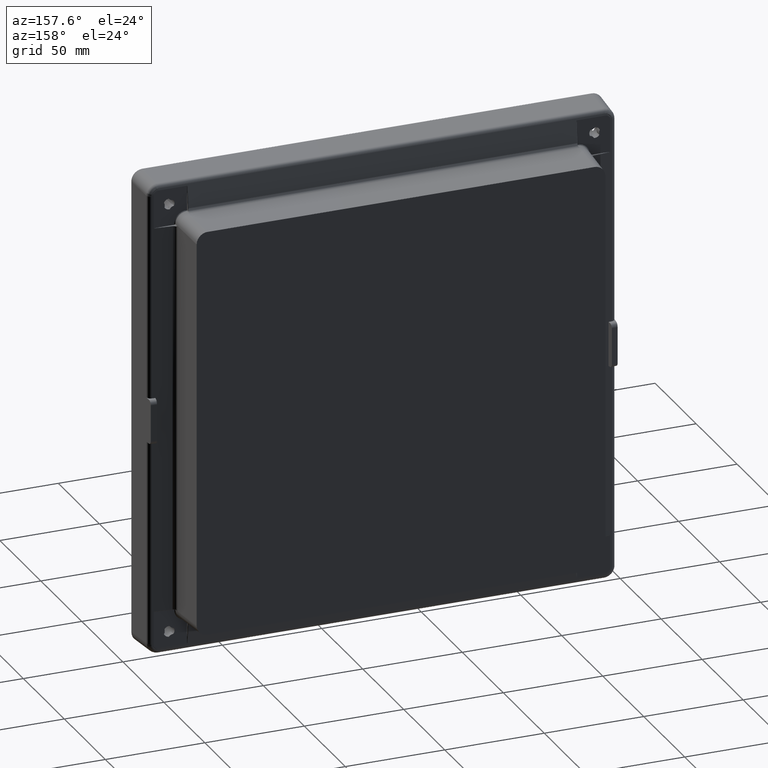
[diagram: clean part render]
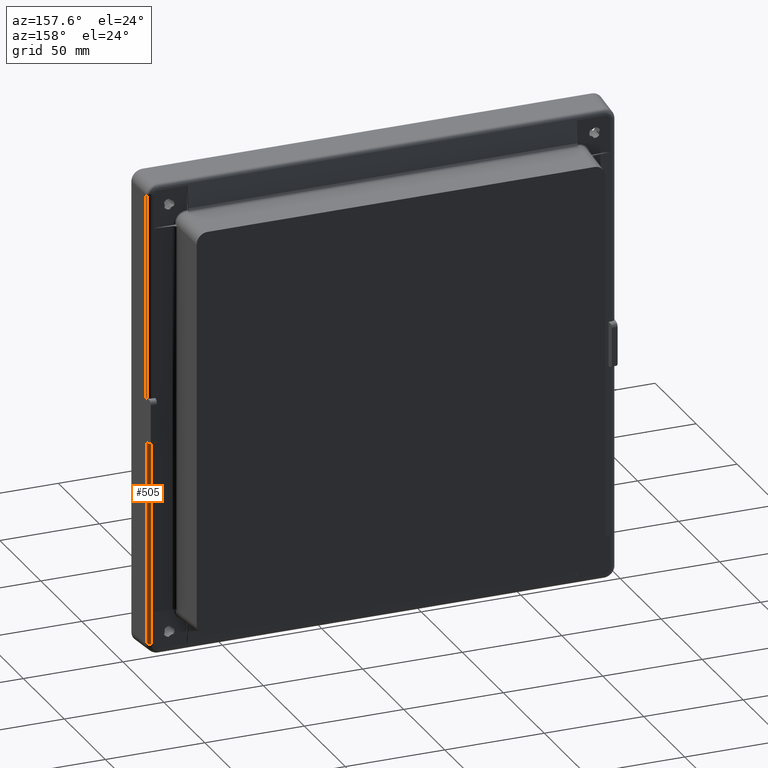
[diagram: same view with one face highlighted and labeled with its STEP entity id]
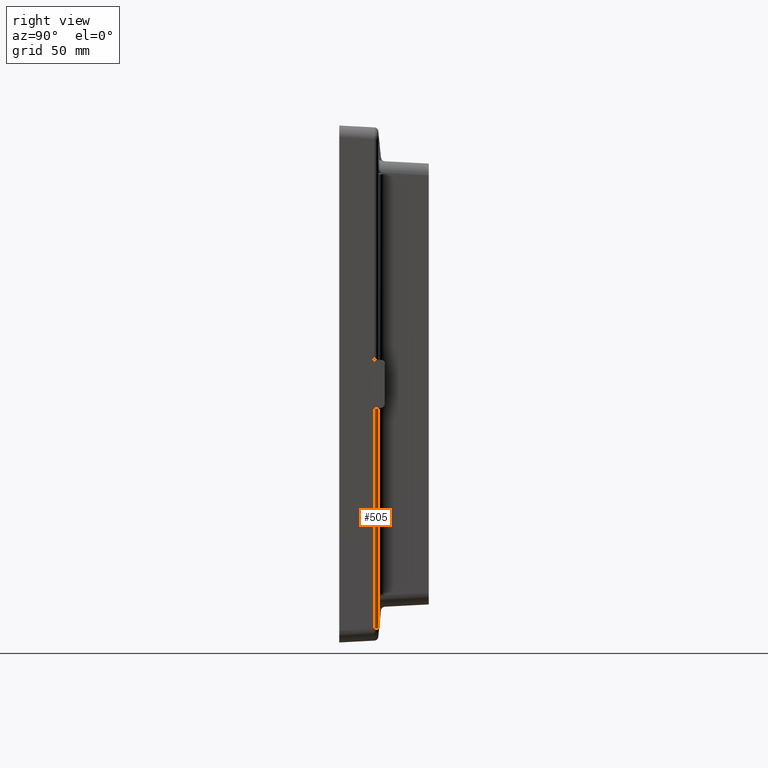
[diagram: same view with one face highlighted and labeled with its STEP entity id]
A machine part, auxiliary view. The second image highlights one B-rep face of the part: STEP entity #505.
A second angle (right view) of the same face is appended — the face is thin or edge-on in the first view.
In plain terms, the highlighted cylindrical surface (edge-blend (fillet) strip) has radius 2 mm, axis along (-0, -0, 1).
Its self-contained STEP definition (entity closure, byte-faithful):
#502 = ORIENTED_EDGE ( 'NONE', *, *, #7682, .T. ) ;
#503 = EDGE_LOOP ( 'NONE', ( #513, #508, #506, #502 ) ) ;
#505 = ADVANCED_FACE ( 'NONE', ( #4113 ), #4112, .T. ) ;
#506 = ORIENTED_EDGE ( 'NONE', *, *, #509, .F. ) ;
#507 = EDGE_CURVE ( 'NONE', #7116, #6420, #4107, .T. ) ;
#508 = ORIENTED_EDGE ( 'NONE', *, *, #507, .T. ) ;
#509 = EDGE_CURVE ( 'NONE', #7715, #6420, #4103, .T. ) ;
#513 = ORIENTED_EDGE ( 'NONE', *, *, #7112, .T. ) ;
#4099 = CARTESIAN_POINT ( 'NONE',  ( 141.5661131808981300, 8.279053702259702200, -113.7736508560150100 ) ) ;
#4100 = CARTESIAN_POINT ( 'NONE',  ( 141.5117816224334300, 9.315761595787186900, -113.7736508561414400 ) ) ;
#4101 = CARTESIAN_POINT ( 'NONE',  ( 140.7938992120259600, 10.06567134505125900, -113.7736508561226700 ) ) ;
#4102 = CARTESIAN_POINT ( 'NONE',  ( 139.7605457326970400, 10.16517196802749700, -113.7736508560149800 ) ) ;
#4103 =( BOUNDED_CURVE ( )  B_SPLINE_CURVE ( 3, ( #4102, #4101, #4100, #4099 ),
 .UNSPECIFIED., .F., .T. ) 
 B_SPLINE_CURVE_WITH_KNOTS ( ( 4, 4 ),
 ( 0.0000000000000000000, 1.000000000000000000 ),
 .UNSPECIFIED. ) 
 CURVE ( )  GEOMETRIC_REPRESENTATION_ITEM ( )  RATIONAL_B_SPLINE_CURVE ( ( 1.000000000000000000, 0.8383766562563024200, 0.8383766562563024200, 1.000000000000000000 ) ) 
 REPRESENTATION_ITEM ( '' )  );
#4104 = DIRECTION ( 'NONE',  ( 0.0000000000000000000, 2.377576345127101400E-016, -1.000000000000000000 ) ) ;
#4105 = VECTOR ( 'NONE', #4104, 1000.000000000000000 ) ;
#4106 = CARTESIAN_POINT ( 'NONE',  ( 141.5661132971651700, 8.279051483778992800, -91.88509851322068300 ) ) ;
#4107 = LINE ( 'NONE', #4106, #4105 ) ;
#4108 = DIRECTION ( 'NONE',  ( 1.000000000000000000, 0.0000000000000000000, 0.0000000000000000000 ) ) ;
#4109 = DIRECTION ( 'NONE',  ( -9.570712058345189900E-017, -3.359901479150509800E-020, 1.000000000000000000 ) ) ;
#4110 = AXIS2_PLACEMENT_3D ( 'NONE', #4117, #4109, #4108 ) ;
#4112 = CYLINDRICAL_SURFACE ( 'NONE', #4110, 2.000000000000001800 ) ;
#4113 = FACE_OUTER_BOUND ( 'NONE', #503, .T. ) ;
#4117 = CARTESIAN_POINT ( 'NONE',  ( 139.5688542276560000, 8.174379571293100000, 170.3000000000000100 ) ) ;
#6420 = VERTEX_POINT ( 'NONE', #9524 ) ;
#7112 = EDGE_CURVE ( 'NONE', #7121, #7116, #11662, .T. ) ;
#7116 = VERTEX_POINT ( 'NONE', #11651 ) ;
#7121 = VERTEX_POINT ( 'NONE', #11645 ) ;
#7682 = EDGE_CURVE ( 'NONE', #7715, #7121, #13801, .T. ) ;
#7715 = VERTEX_POINT ( 'NONE', #13837 ) ;
#9524 = CARTESIAN_POINT ( 'NONE',  ( 141.5661131808981300, 8.279053702259702200, -113.7736508560150100 ) ) ;
#11645 = CARTESIAN_POINT ( 'NONE',  ( 139.7605457326967600, 10.16517196802744400, -11.20722333784912500 ) ) ;
#11651 = CARTESIAN_POINT ( 'NONE',  ( 141.5661132971651700, 8.279051483778982100, -11.29654617042634300 ) ) ;
#11657 = CARTESIAN_POINT ( 'NONE',  ( 141.5661132971651700, 8.279051483778982100, -11.29654617042634300 ) ) ;
#11658 = CARTESIAN_POINT ( 'NONE',  ( 141.5117816224346300, 9.315761595785744500, -11.24273753937605000 ) ) ;
#11659 = CARTESIAN_POINT ( 'NONE',  ( 140.7938992120267300, 10.06567134505098700, -11.20722333784914100 ) ) ;
#11660 = CARTESIAN_POINT ( 'NONE',  ( 139.7605457326967600, 10.16517196802744400, -11.20722333784912500 ) ) ;
#11662 =( BOUNDED_CURVE ( )  B_SPLINE_CURVE ( 3, ( #11660, #11659, #11658, #11657 ),
 .UNSPECIFIED., .F., .F. ) 
 B_SPLINE_CURVE_WITH_KNOTS ( ( 4, 4 ),
 ( 1.442259939948832900E-013, 1.422443340375386700 ),
 .UNSPECIFIED. ) 
 CURVE ( )  GEOMETRIC_REPRESENTATION_ITEM ( )  RATIONAL_B_SPLINE_CURVE ( ( 1.000000000000000000, 0.8383766562560627200, 0.8383766562560627200, 1.000000000000000000 ) ) 
 REPRESENTATION_ITEM ( '' )  );
#13798 = DIRECTION ( 'NONE',  ( 0.0000000000000000000, 0.0000000000000000000, 1.000000000000000000 ) ) ;
#13799 = VECTOR ( 'NONE', #13798, 1000.000000000000000 ) ;
#13800 = CARTESIAN_POINT ( 'NONE',  ( 139.7605457326967300, 10.16517196802743300, -58.70000000000001700 ) ) ;
#13801 = LINE ( 'NONE', #13800, #13799 ) ;
#13837 = CARTESIAN_POINT ( 'NONE',  ( 139.7605457326970400, 10.16517196802749700, -113.7736508560149800 ) ) ;